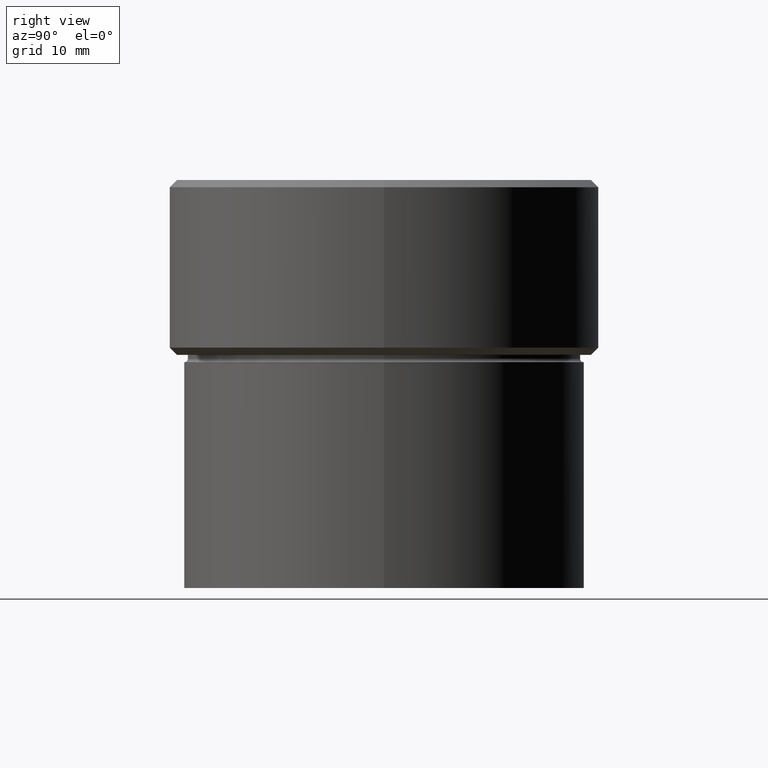
[diagram: clean part render]
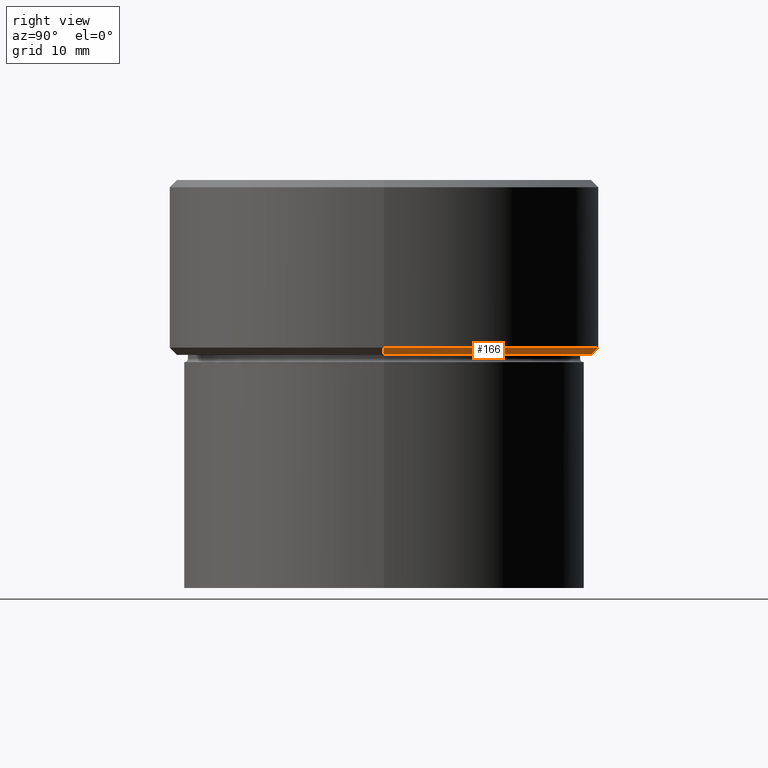
[diagram: same view with one face highlighted and labeled with its STEP entity id]
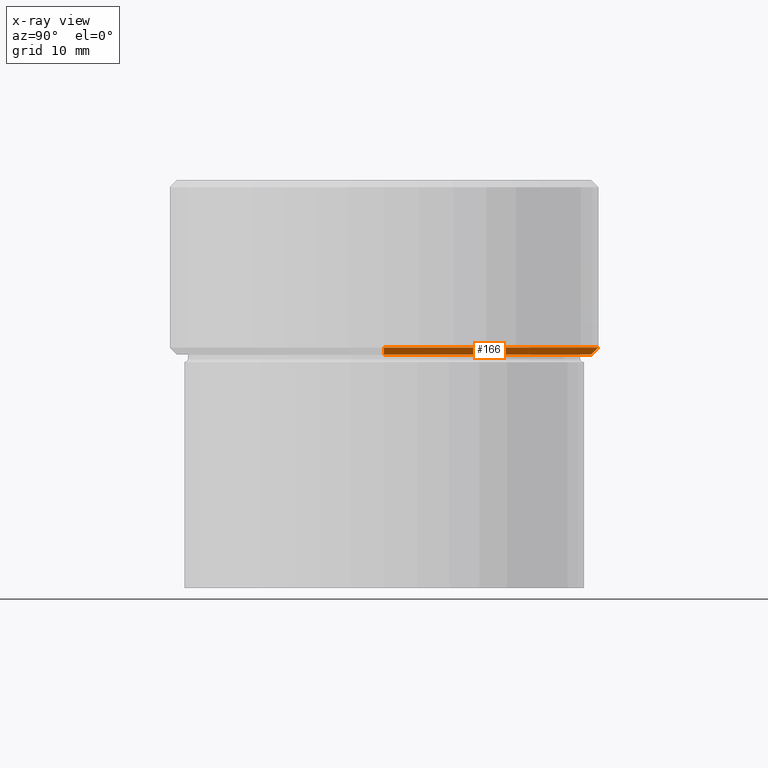
[diagram: x-ray of the same camera — body ghosted, the highlighted face saturated]
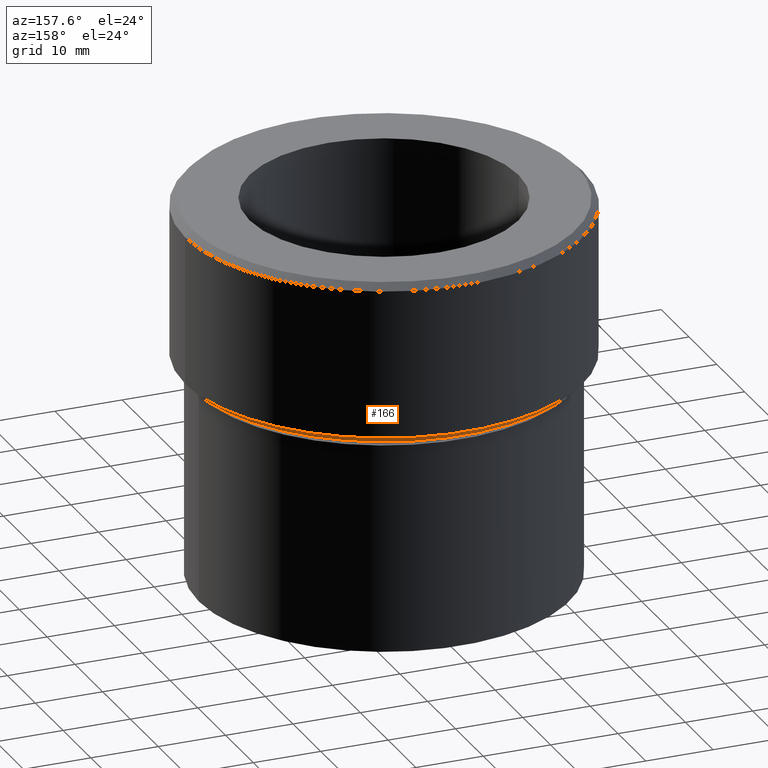
[diagram: same view with one face highlighted and labeled with its STEP entity id]
A machine part, right view. The second image highlights one B-rep face of the part: STEP entity #166.
The next image is the same camera in x-ray: the body ghosted, the highlighted face saturated — about 0% of this face is hidden behind the body in this view.
A second angle (auxiliary view) of the same face is appended — the face is thin or edge-on in the first view.
In plain terms, the highlighted conical surface has half-angle 45 deg.
Its self-contained STEP definition (entity closure, byte-faithful):
#2 = DIRECTION ( 'NONE',  ( 1.000000000000000000, 0.000000000000000000, 0.000000000000000000 ) ) ;
#26 = CARTESIAN_POINT ( 'NONE',  ( 28.49999999999998224, 0.000000000000000000, -24.00000000000000000 ) ) ;
#31 = EDGE_CURVE ( 'NONE', #485, #124, #392, .T. ) ;
#41 = CIRCLE ( 'NONE', #111, 28.49999999999998224 ) ;
#44 = AXIS2_PLACEMENT_3D ( 'NONE', #272, #184, #435 ) ;
#57 = CARTESIAN_POINT ( 'NONE',  ( -28.49999999999998224, 3.551475717527322452E-15, -24.00000000000000000 ) ) ;
#71 = DIRECTION ( 'NONE',  ( -0.7071067811865500152, 8.659560562354963673E-17, 0.7071067811865451302 ) ) ;
#111 = AXIS2_PLACEMENT_3D ( 'NONE', #327, #490, #238 ) ;
#124 = VERTEX_POINT ( 'NONE', #283 ) ;
#135 = EDGE_LOOP ( 'NONE', ( #177, #300, #261, #497 ) ) ;
#136 = DIRECTION ( 'NONE',  ( 0.7071067811865500152, 0.000000000000000000, 0.7071067811865451302 ) ) ;
#139 = LINE ( 'NONE', #445, #525 ) ;
#160 = DIRECTION ( 'NONE',  ( -0.000000000000000000, -0.000000000000000000, 1.000000000000000000 ) ) ;
#166 = ADVANCED_FACE ( 'NONE', ( #194 ), #399, .T. ) ;
#174 = LINE ( 'NONE', #514, #312 ) ;
#175 = EDGE_CURVE ( 'NONE', #365, #469, #41, .T. ) ;
#177 = ORIENTED_EDGE ( 'NONE', *, *, #175, .F. ) ;
#184 = DIRECTION ( 'NONE',  ( -0.000000000000000000, -0.000000000000000000, 1.000000000000000000 ) ) ;
#194 = FACE_OUTER_BOUND ( 'NONE', #135, .T. ) ;
#228 = AXIS2_PLACEMENT_3D ( 'NONE', #371, #160, #2 ) ;
#238 = DIRECTION ( 'NONE',  ( -1.000000000000000000, 0.000000000000000000, 0.000000000000000000 ) ) ;
#261 = ORIENTED_EDGE ( 'NONE', *, *, #31, .F. ) ;
#272 = CARTESIAN_POINT ( 'NONE',  ( 0.000000000000000000, 0.000000000000000000, -22.99999999999999289 ) ) ;
#283 = CARTESIAN_POINT ( 'NONE',  ( -29.50000000000000000, 3.612708057484691604E-15, -22.99999999999999289 ) ) ;
#299 = EDGE_CURVE ( 'NONE', #365, #124, #139, .T. ) ;
#300 = ORIENTED_EDGE ( 'NONE', *, *, #299, .T. ) ;
#312 = VECTOR ( 'NONE', #136, 1000.000000000000114 ) ;
#327 = CARTESIAN_POINT ( 'NONE',  ( 0.000000000000000000, 0.000000000000000000, -24.00000000000000000 ) ) ;
#365 = VERTEX_POINT ( 'NONE', #57 ) ;
#371 = CARTESIAN_POINT ( 'NONE',  ( 0.000000000000000000, 0.000000000000000000, -22.99999999999999289 ) ) ;
#392 = CIRCLE ( 'NONE', #44, 29.50000000000000000 ) ;
#399 = CONICAL_SURFACE ( 'NONE', #228, 29.50000000000000000, 0.7853981633974517207 ) ;
#407 = EDGE_CURVE ( 'NONE', #469, #485, #174, .T. ) ;
#435 = DIRECTION ( 'NONE',  ( -1.000000000000000000, 0.000000000000000000, 0.000000000000000000 ) ) ;
#441 = CARTESIAN_POINT ( 'NONE',  ( 29.50000000000000000, 0.000000000000000000, -22.99999999999999289 ) ) ;
#445 = CARTESIAN_POINT ( 'NONE',  ( -29.50000000000000000, 3.612708057484691604E-15, -22.99999999999999289 ) ) ;
#469 = VERTEX_POINT ( 'NONE', #26 ) ;
#485 = VERTEX_POINT ( 'NONE', #441 ) ;
#490 = DIRECTION ( 'NONE',  ( 0.000000000000000000, 0.000000000000000000, -1.000000000000000000 ) ) ;
#497 = ORIENTED_EDGE ( 'NONE', *, *, #407, .F. ) ;
#514 = CARTESIAN_POINT ( 'NONE',  ( 29.50000000000000000, 0.000000000000000000, -22.99999999999999289 ) ) ;
#525 = VECTOR ( 'NONE', #71, 1000.000000000000114 ) ;